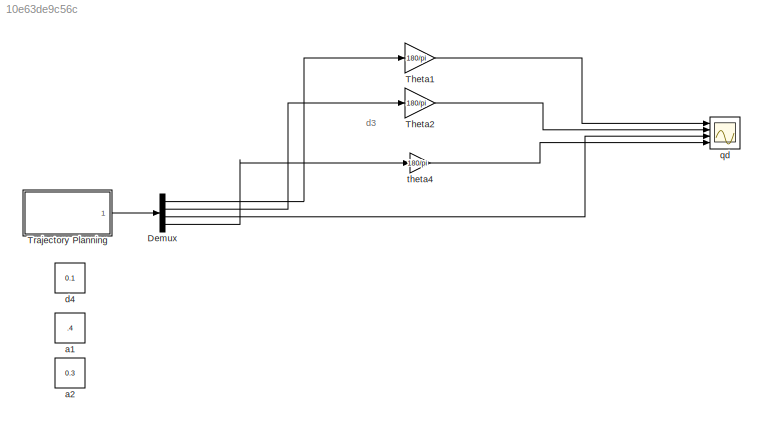
MODEL slx_10e63de9c56c
KIND model
CONFIG AbsTol = auto
CONFIG EnableMultiTasking = on
CONFIG FixedStep = auto
CONFIG MaxStep = auto
CONFIG MinStep = auto
CONFIG RelTol = 1e-3
CONFIG SampleTimeConstraint = Unconstrained
CONFIG Solver = ode45
CONFIG SolverName = ode45
CONFIG StartTime = 0.0
CONFIG StopTime = 5
BLOCK [Demux] Demux
  DisplayOption = bar
  Ports = [1, 4]
BLOCK [Gain] Theta1
  Gain = 180/pi
  OutDataTypeStr = Inherit: Inherit via internal rule
  ParamDataTypeStr = Inherit: Inherit via internal rule
  SaturateOnIntegerOverflow = off
BLOCK [Gain] Theta2
  Gain = 180/pi
  OutDataTypeStr = Inherit: Inherit via internal rule
  ParamDataTypeStr = Inherit: Inherit via internal rule
  SaturateOnIntegerOverflow = off
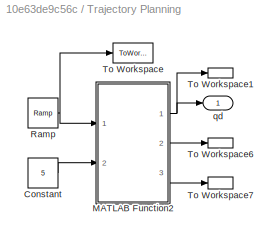
BLOCK [SubSystem] Trajectory Planning
  Ports = [0, 1]
  RequestExecContextInheritance = off
BLOCK [Constant] Trajectory Planning/Constant
  Value = 5
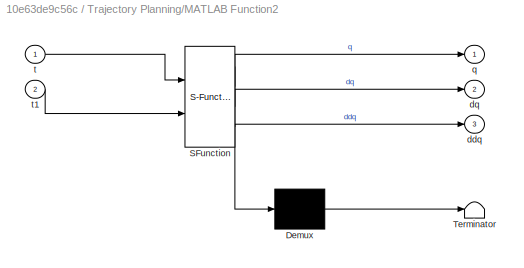
BLOCK [SubSystem] Trajectory Planning/MATLAB Function2
  ErrorFcn = Stateflow.Translate.translate
  PermitHierarchicalResolution = ExplicitOnly
  Ports = [2, 3]
  RequestExecContextInheritance = off
  SFBlockType = MATLAB Function
  TreatAsAtomicUnit = on
BLOCK [Demux] Trajectory Planning/MATLAB Function2/ Demux 
  Outputs = 1
  Ports = [1, 1]
BLOCK [S-Function] Trajectory Planning/MATLAB Function2/ SFunction 
  EnableBusSupport = on
  FunctionName = sf_sfun
  PortCounts = [2 4]
  Ports = [2, 4]
  SFcnIsStateOwnerBlock = off
  SFunctionDeploymentMode = off
  Tag = Stateflow S-Function 3
BLOCK [Terminator] Trajectory Planning/MATLAB Function2/ Terminator 
BLOCK [Outport] Trajectory Planning/MATLAB Function2/ddq
  IconDisplay = Port number
  Port = 3
BLOCK [Outport] Trajectory Planning/MATLAB Function2/dq
  IconDisplay = Port number
  Port = 2
BLOCK [Outport] Trajectory Planning/MATLAB Function2/q
  IconDisplay = Port number
BLOCK [Inport] Trajectory Planning/MATLAB Function2/t
  IconDisplay = Port number
BLOCK [Inport] Trajectory Planning/MATLAB Function2/t1
  IconDisplay = Port number
  Port = 2
BLOCK [Reference] Trajectory Planning/Ramp  REF=simulink/Sources/Ramp
  Ports = [0, 1]
  SourceBlock = simulink/Sources/Ramp
  SourceProductBaseCode = SL
  SourceProductName = Simulink
  SourceType = Ramp
BLOCK [ToWorkspace] Trajectory Planning/To Workspace
  FixptAsFi = on
  MaxDataPoints = inf
  Ports = [1]
  SampleTime = -1
  VariableName = time
BLOCK [ToWorkspace] Trajectory Planning/To Workspace1
  FixptAsFi = on
  MaxDataPoints = inf
  Ports = [1]
  SampleTime = -1
  VariableName = qd
BLOCK [ToWorkspace] Trajectory Planning/To Workspace6
  FixptAsFi = on
  MaxDataPoints = inf
  Ports = [1]
  SampleTime = -1
  VariableName = dqd
BLOCK [ToWorkspace] Trajectory Planning/To Workspace7
  FixptAsFi = on
  MaxDataPoints = inf
  Ports = [1]
  SampleTime = -1
  VariableName = ddqd
BLOCK [Outport] Trajectory Planning/qd
  IconDisplay = Port number
BLOCK [Constant] a1
  Value = .4
BLOCK [Constant] a2
  Value = 0.3
BLOCK [Constant] d4
  Value = 0.1
BLOCK [Scope] qd
  Floating = off
  NumInputPorts = 4
  Ports = [4]
  ScopeSpecificationString = Simulink.scopes.TimeScopeBlockCfg('CurrentConfiguration', extmgr.ConfigurationSet(extmgr.Configuration('Core','General UI',true),extmgr.Configuration('Core','Source UI',true),extmgr.Configuration('Sources','WiredSimulink',true,'DataLoggingVariableName','ErrorKin','DataLoggingSaveFormat','Array','DataLoggingDecimation','1','DataLoggingDecimateData',true),extmgr.Configuration('Visuals','Time Domain'...<+3650ch>
BLOCK [Gain] theta4
  Gain = 180/pi
  OutDataTypeStr = Inherit: Inherit via internal rule
  ParamDataTypeStr = Inherit: Inherit via internal rule
  SaturateOnIntegerOverflow = off
ANNOTATION (root): d3
LINE Demux:1 -> Theta1:1
LINE Demux:2 -> Theta2:1
LINE Demux:3 -> qd:3
LINE Demux:4 -> theta4:1
LINE Theta1:1 -> qd:1
LINE Theta2:1 -> qd:2
LINE Trajectory Planning/Constant:1 -> Trajectory Planning/MATLAB Function2:2
NET Trajectory Planning/MATLAB Function2:1 -> Trajectory Planning/To Workspace1:1, Trajectory Planning/qd:1
LINE Trajectory Planning/MATLAB Function2:2 -> Trajectory Planning/To Workspace6:1
LINE Trajectory Planning/MATLAB Function2:3 -> Trajectory Planning/To Workspace7:1
NET Trajectory Planning/Ramp:1 -> Trajectory Planning/MATLAB Function2:1, Trajectory Planning/To Workspace:1
LINE Trajectory Planning:1 -> Demux:1
LINE theta4:1 -> qd:4
note: NET lines group one-source signal fan-out (src -> all destinations, sorted); 1:1 wires keep LINE
CHART Trajectory Planning/MATLAB Function2 states=1 transitions=1
  STATE_LABEL 'eML_blk_kernel()'
  STATE_LABEL 'SCRIPT:\nfunction [q,dq,ddq] = fcn(t,t1)\n%#codegen\nt1 = t/t1;\nq0 = [(0)*pi/180;(0)*pi/180;(0);(0)*pi/180];\nqf = [(90)*pi/180;(30)*pi/180;(0.1);(180)*pi/180];\n\nq = q0 + 3*(qf-q0)*t1^2 - 2*(qf-q0)*t1^3;\ndq = 6*(qf-q0)*t1 - 6*(qf-q0)*t1^2;\nddq = 6*(qf-q0) - 12*(qf-q0)*t1;\n% q\n% t1\n\n% a   = [ 32.5*pi/180; 45*pi/180];\n% w   = [ pi/3; pi/2];\n% q   = a.*(  sin(w.*t) );\n% dq  = a.*(  w.*cos(w.*t) );\n% ddq ...<+154ch>'
